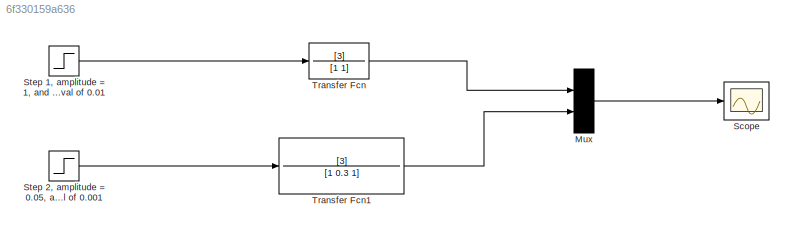
MODEL slx_6f330159a636
KIND model
CONFIG AbsTol = auto
CONFIG EnableMultiTasking = off
CONFIG FixedStep = auto
CONFIG MaxStep = auto
CONFIG MinStep = auto
CONFIG RelTol = 1e-3
CONFIG SampleTimeConstraint = Unconstrained
CONFIG Solver = VariableStepAuto
CONFIG SolverName = VariableStepAuto
CONFIG StartTime = 0.0
CONFIG StopTime = 10.0
BLOCK [Mux] Mux
  DisplayOption = bar
  Inputs = 2
  Ports = [2, 1]
BLOCK [Scope] Scope
  Floating = off
  NumInputPorts = 1
  Ports = [1]
  ScopeSpecificationString = Simulink.scopes.TimeScopeBlockCfg('CurrentConfiguration', extmgr.ConfigurationSet(extmgr.Configuration('Core','General UI',true),extmgr.Configuration('Core','Source UI',true),extmgr.Configuration('Sources','WiredSimulink',true,'DataLogging',true,'DataLoggingSaveFormat','StructureWithTime'),extmgr.Configuration('Visuals','Time Domain',true,'SerializedDisplays',{struct('MinYLimReal','-0.37498','MaxY...<+1438ch>
BLOCK [Step] Step 1, amplitude = 1, and interval of 0.01
  SampleTime = 0.01
  Time = 0
BLOCK [Step] Step 2, amplitude = 0.05, and interval of 0.001 
  After = 0.5
  SampleTime = 0.001
  Time = 0
BLOCK [TransferFcn] Transfer Fcn
  Denominator = [1 1]
  Numerator = [3]
BLOCK [TransferFcn] Transfer Fcn1
  Denominator = [1 0.3 1]
  Numerator = [3]
LINE Mux:1 -> Scope:1
LINE Step 1, amplitude = 1, and interval of 0.01:1 -> Transfer Fcn:1
LINE Step 2, amplitude = 0.05, and interval of 0.001 :1 -> Transfer Fcn1:1
LINE Transfer Fcn1:1 -> Mux:2
LINE Transfer Fcn:1 -> Mux:1
